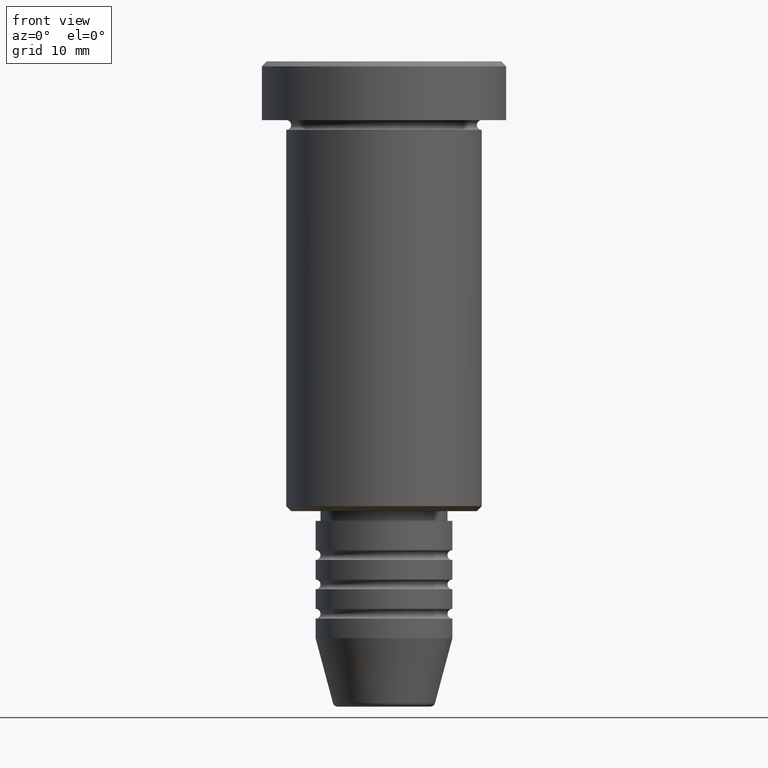
[diagram: clean part render]
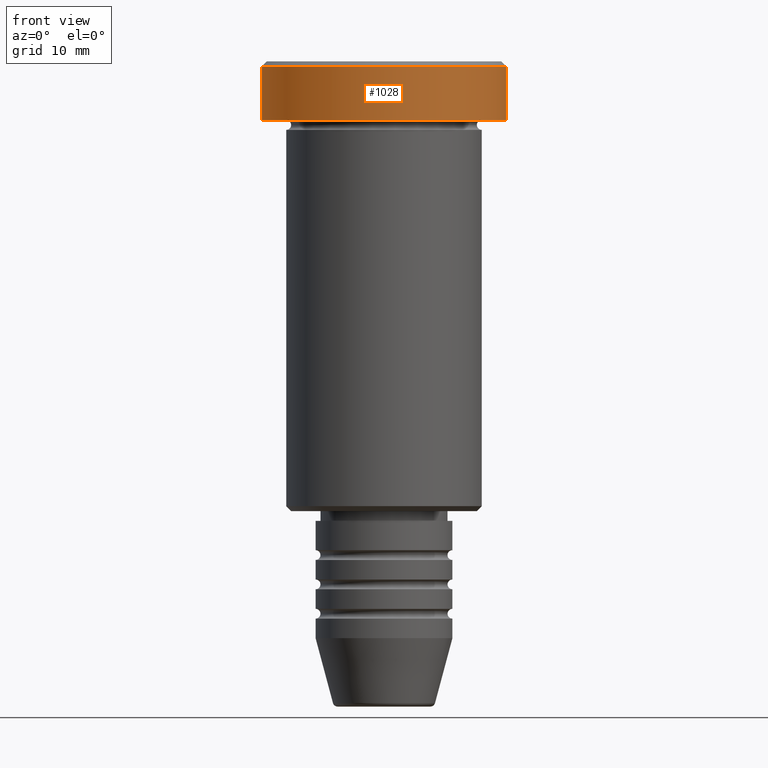
[diagram: same view with one face highlighted and labeled with its STEP entity id]
A machine part, front view. The second image highlights one B-rep face of the part: STEP entity #1028.
In plain terms, the highlighted cylindrical surface (partial cylindrical patch) has radius 12.5 mm, axis along (-0, -0, 1).
Its self-contained STEP definition (entity closure, byte-faithful):
#17 = DIRECTION ( 'NONE',  ( -0.000000000000000000, -0.000000000000000000, 1.000000000000000000 ) ) ;
#20 = DIRECTION ( 'NONE',  ( -0.000000000000000000, -0.000000000000000000, 1.000000000000000000 ) ) ;
#83 = EDGE_CURVE ( 'NONE', #801, #423, #666, .T. ) ;
#127 = DIRECTION ( 'NONE',  ( 1.000000000000000000, 0.000000000000000000, 0.000000000000000000 ) ) ;
#167 = DIRECTION ( 'NONE',  ( 0.000000000000000000, 0.000000000000000000, -1.000000000000000000 ) ) ;
#192 = CARTESIAN_POINT ( 'NONE',  ( 12.50000000000000000, 0.000000000000000000, -0.4999999999999917843 ) ) ;
#207 = CARTESIAN_POINT ( 'NONE',  ( 12.50000000000000000, 0.000000000000000000, 0.000000000000000000 ) ) ;
#220 = ORIENTED_EDGE ( 'NONE', *, *, #232, .T. ) ;
#232 = EDGE_CURVE ( 'NONE', #363, #801, #982, .T. ) ;
#326 = EDGE_CURVE ( 'NONE', #423, #488, #744, .T. ) ;
#354 = AXIS2_PLACEMENT_3D ( 'NONE', #452, #167, #1068 ) ;
#363 = VERTEX_POINT ( 'NONE', #994 ) ;
#387 = VECTOR ( 'NONE', #17, 1000.000000000000000 ) ;
#408 = LINE ( 'NONE', #952, #759 ) ;
#423 = VERTEX_POINT ( 'NONE', #192 ) ;
#443 = CARTESIAN_POINT ( 'NONE',  ( 12.50000000000000000, 0.000000000000000000, -5.999999999999996447 ) ) ;
#452 = CARTESIAN_POINT ( 'NONE',  ( 0.000000000000000000, 0.000000000000000000, -0.4999999999999917843 ) ) ;
#482 = AXIS2_PLACEMENT_3D ( 'NONE', #734, #20, #649 ) ;
#488 = VERTEX_POINT ( 'NONE', #1020 ) ;
#555 = FACE_OUTER_BOUND ( 'NONE', #1178, .T. ) ;
#573 = ORIENTED_EDGE ( 'NONE', *, *, #1125, .F. ) ;
#635 = ORIENTED_EDGE ( 'NONE', *, *, #83, .T. ) ;
#649 = DIRECTION ( 'NONE',  ( 1.000000000000000000, 0.000000000000000000, 0.000000000000000000 ) ) ;
#666 = LINE ( 'NONE', #207, #387 ) ;
#734 = CARTESIAN_POINT ( 'NONE',  ( 0.000000000000000000, 0.000000000000000000, 0.000000000000000000 ) ) ;
#744 = CIRCLE ( 'NONE', #354, 12.50000000000000000 ) ;
#759 = VECTOR ( 'NONE', #768, 1000.000000000000000 ) ;
#768 = DIRECTION ( 'NONE',  ( -0.000000000000000000, -0.000000000000000000, 1.000000000000000000 ) ) ;
#801 = VERTEX_POINT ( 'NONE', #443 ) ;
#822 = CYLINDRICAL_SURFACE ( 'NONE', #482, 12.50000000000000000 ) ;
#841 = ORIENTED_EDGE ( 'NONE', *, *, #326, .T. ) ;
#888 = AXIS2_PLACEMENT_3D ( 'NONE', #943, #1124, #127 ) ;
#943 = CARTESIAN_POINT ( 'NONE',  ( 0.000000000000000000, 0.000000000000000000, -5.999999999999996447 ) ) ;
#952 = CARTESIAN_POINT ( 'NONE',  ( -12.50000000000000000, 1.530808498934191521E-15, 0.000000000000000000 ) ) ;
#982 = CIRCLE ( 'NONE', #888, 12.50000000000000000 ) ;
#994 = CARTESIAN_POINT ( 'NONE',  ( -12.50000000000000000, 1.530808498934191521E-15, -5.999999999999996447 ) ) ;
#1020 = CARTESIAN_POINT ( 'NONE',  ( -12.50000000000000000, 1.530808498934191521E-15, -0.4999999999999917843 ) ) ;
#1028 = ADVANCED_FACE ( 'NONE', ( #555 ), #822, .T. ) ;
#1068 = DIRECTION ( 'NONE',  ( 1.000000000000000000, 0.000000000000000000, 0.000000000000000000 ) ) ;
#1124 = DIRECTION ( 'NONE',  ( -0.000000000000000000, -0.000000000000000000, 1.000000000000000000 ) ) ;
#1125 = EDGE_CURVE ( 'NONE', #363, #488, #408, .T. ) ;
#1178 = EDGE_LOOP ( 'NONE', ( #573, #220, #635, #841 ) ) ;